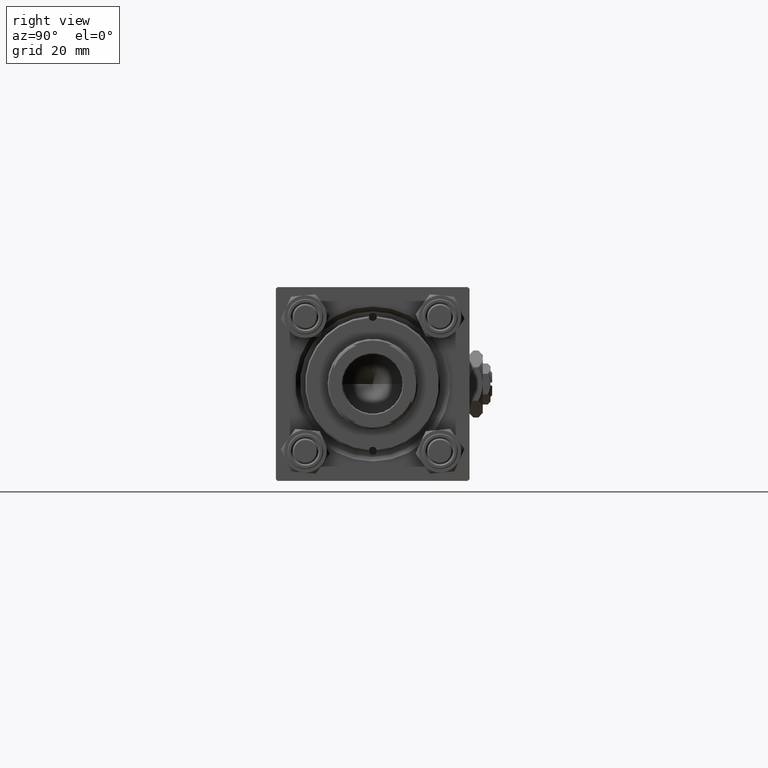
[diagram: clean part render]
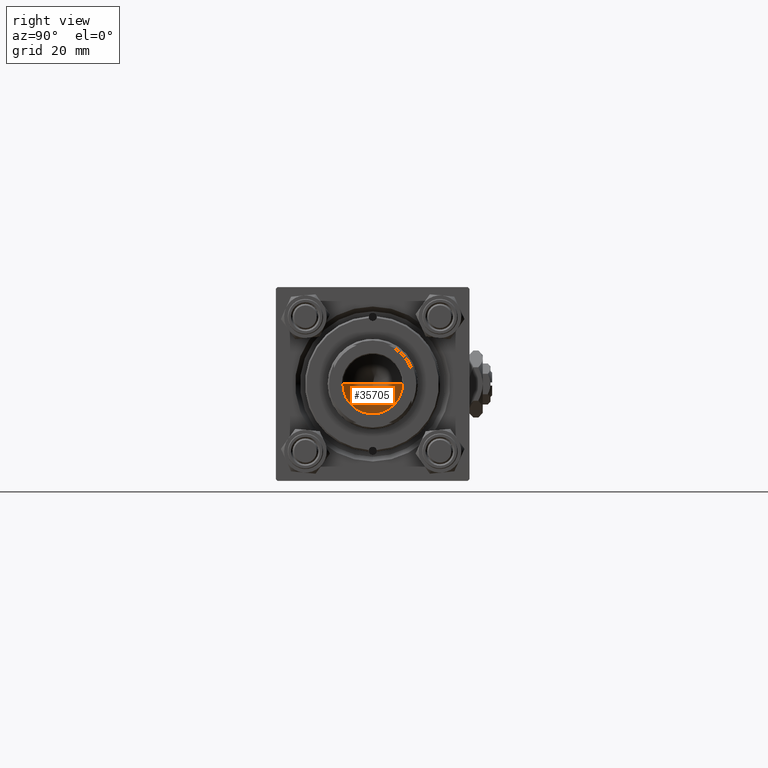
[diagram: same view with one face highlighted and labeled with its STEP entity id]
A machine part, right view. The second image highlights one B-rep face of the part: STEP entity #35705.
In plain terms, the highlighted conical surface has half-angle 59 deg.
Its self-contained STEP definition (entity closure, byte-faithful):
#149 = EDGE_CURVE ( 'NONE', #33073, #26174, #574, .T. ) ;
#574 = LINE ( 'NONE', #32754, #6959 ) ;
#830 = DIRECTION ( 'NONE',  ( 0.8571673007021117785, 0.000000000000000000, 0.5150380749100550437 ) ) ;
#889 = DIRECTION ( 'NONE',  ( 1.000000000000000000, 0.000000000000000000, 0.000000000000000000 ) ) ;
#2020 = DIRECTION ( 'NONE',  ( -0.8571673007021117785, 1.049727191138617956E-16, 0.5150380749100550437 ) ) ;
#3072 = CARTESIAN_POINT ( 'NONE',  ( -9.249999999999992895, 1.132798289211300712E-15, 101.0000000000000000 ) ) ;
#4060 = DIRECTION ( 'NONE',  ( -0.000000000000000000, -0.000000000000000000, 1.000000000000000000 ) ) ;
#5418 = VERTEX_POINT ( 'NONE', #3072 ) ;
#5720 = CARTESIAN_POINT ( 'NONE',  ( -9.249999999999992895, 1.132798289211300712E-15, 101.0000000000000000 ) ) ;
#5976 = FACE_OUTER_BOUND ( 'NONE', #28984, .T. ) ;
#6087 = AXIS2_PLACEMENT_3D ( 'NONE', #25785, #41879, #33948 ) ;
#6959 = VECTOR ( 'NONE', #830, 1000.000000000000000 ) ;
#9616 = ORIENTED_EDGE ( 'NONE', *, *, #17454, .F. ) ;
#17454 = EDGE_CURVE ( 'NONE', #33073, #5418, #42131, .T. ) ;
#17898 = CIRCLE ( 'NONE', #36459, 9.249999999999992895 ) ;
#23822 = CONICAL_SURFACE ( 'NONE', #6087, 9.249999999999992895, 1.029744258676653423 ) ;
#25785 = CARTESIAN_POINT ( 'NONE',  ( 0.000000000000000000, 0.000000000000000000, 101.0000000000000000 ) ) ;
#26174 = VERTEX_POINT ( 'NONE', #51682 ) ;
#28984 = EDGE_LOOP ( 'NONE', ( #9616, #42021, #45242 ) ) ;
#29165 = VECTOR ( 'NONE', #2020, 1000.000000000000000 ) ;
#32754 = CARTESIAN_POINT ( 'NONE',  ( 9.249999999999992895, 0.000000000000000000, 101.0000000000000000 ) ) ;
#33073 = VERTEX_POINT ( 'NONE', #50772 ) ;
#33948 = DIRECTION ( 'NONE',  ( 1.000000000000000000, 0.000000000000000000, 0.000000000000000000 ) ) ;
#35705 = ADVANCED_FACE ( 'NONE', ( #5976 ), #23822, .F. ) ;
#36459 = AXIS2_PLACEMENT_3D ( 'NONE', #37036, #4060, #889 ) ;
#36820 = EDGE_CURVE ( 'NONE', #26174, #5418, #17898, .T. ) ;
#37036 = CARTESIAN_POINT ( 'NONE',  ( 0.000000000000000000, 0.000000000000000000, 101.0000000000000000 ) ) ;
#41879 = DIRECTION ( 'NONE',  ( -0.000000000000000000, -0.000000000000000000, 1.000000000000000000 ) ) ;
#42021 = ORIENTED_EDGE ( 'NONE', *, *, #149, .T. ) ;
#42131 = LINE ( 'NONE', #5720, #29165 ) ;
#45242 = ORIENTED_EDGE ( 'NONE', *, *, #36820, .T. ) ;
#50772 = CARTESIAN_POINT ( 'NONE',  ( -9.769621978240258809E-15, 0.000000000000000000, 95.44203927399506426 ) ) ;
#51682 = CARTESIAN_POINT ( 'NONE',  ( 9.249999999999992895, 0.000000000000000000, 101.0000000000000000 ) ) ;